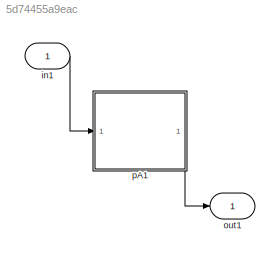
MODEL slx_5d74455a9eac
KIND model
CONFIG AbsTol = auto
CONFIG EnableMultiTasking = off
CONFIG FixedStep = auto
CONFIG MaxStep = auto
CONFIG MinStep = auto
CONFIG RelTol = 1e-3
CONFIG SampleTimeConstraint = Unconstrained
CONFIG Solver = VariableStepAuto
CONFIG SolverName = VariableStepAuto
CONFIG StartTime = 0.0
CONFIG StopTime = 10.0
BLOCK [Inport] in1
  IconDisplay = Port number
  OutDataTypeStr = double
BLOCK [Outport] out1
  IconDisplay = Port number
  OutDataTypeStr = double
BLOCK [ModelReference] pA1
  ModelNameDialog = PartA1
  ModelReferenceVersion = 1.1
  Ports = [1, 1]
LINE in1:1 -> pA1:1
LINE pA1:1 -> out1:1
